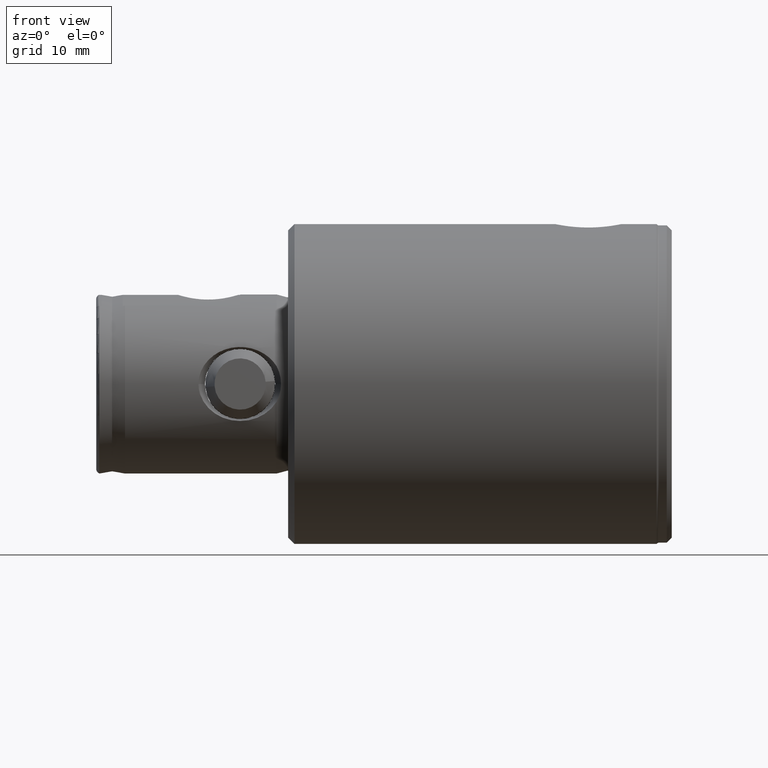
[diagram: clean part render]
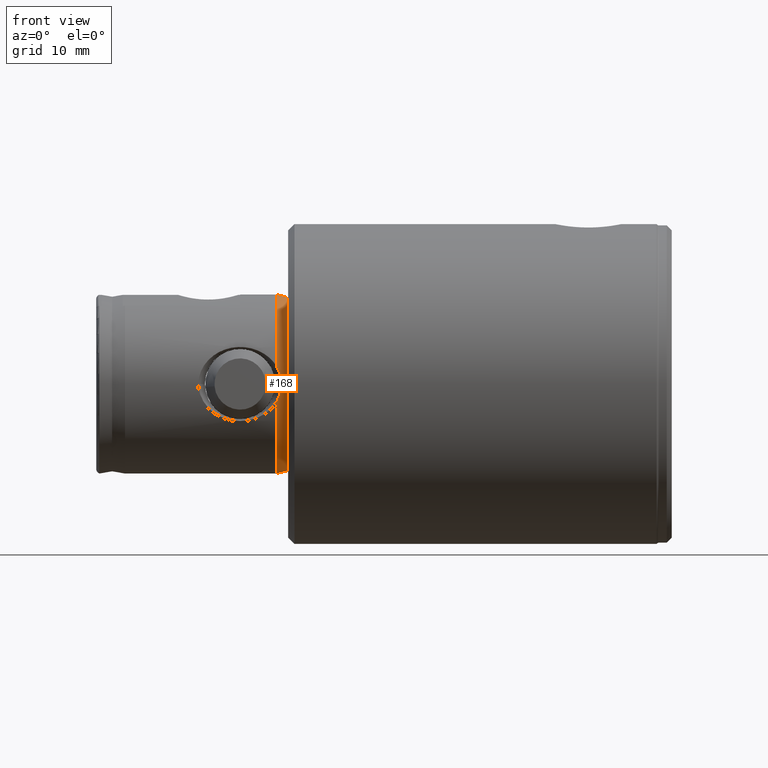
[diagram: same view with one face highlighted and labeled with its STEP entity id]
A machine part, front view. The second image highlights one B-rep face of the part: STEP entity #168.
In plain terms, the highlighted conical surface has half-angle 15 deg.
Its self-contained STEP definition (entity closure, byte-faithful):
#11 = LINE ( 'NONE', #4418, #1731 ) ;
#77 = DIRECTION ( 'NONE',  ( -1.000000000000000000, 0.0000000000000000000, 0.0000000000000000000 ) ) ;
#88 = DIRECTION ( 'NONE',  ( -0.2588190451025306200, 3.169619151431885700E-017, 0.9659258262890656500 ) ) ;
#145 = VERTEX_POINT ( 'NONE', #3553 ) ;
#147 = CARTESIAN_POINT ( 'NONE',  ( -7.840727246964199400E-016, -13.81305706548728700, 61.09756858248216800 ) ) ;
#161 = EDGE_CURVE ( 'NONE', #1756, #2107, #2412, .T. ) ;
#168 = ADVANCED_FACE ( 'NONE', ( #4075 ), #254, .T. ) ;
#179 = CARTESIAN_POINT ( 'NONE',  ( 1.905477004963748400, -13.76937602453819500, 61.39511536676124600 ) ) ;
#254 = CONICAL_SURFACE ( 'NONE', #2848, 14.20000000000000100, 0.2617993877991596200 ) ;
#344 = ORIENTED_EDGE ( 'NONE', *, *, #3162, .F. ) ;
#371 = EDGE_CURVE ( 'NONE', #145, #2923, #11, .T. ) ;
#496 = CIRCLE ( 'NONE', #987, 14.00000000000000000 ) ;
#499 = B_SPLINE_CURVE_WITH_KNOTS ( 'NONE', 3,
 ( #4470, #2349, #179, #4052, #894, #147 ),
 .UNSPECIFIED., .F., .F.,
 ( 4, 2, 4 ),
 ( 4.232321616860150200E-007, 0.001442793850183873800, 0.002885164468206061600 ),
 .UNSPECIFIED. ) ;
#529 = CARTESIAN_POINT ( 'NONE',  ( -2.355123084629318500, -13.74547602859877300, 61.56844823570346400 ) ) ;
#530 = ORIENTED_EDGE ( 'NONE', *, *, #2792, .T. ) ;
#606 = CARTESIAN_POINT ( 'NONE',  ( -14.00000000000000000, 0.0000000000000000000, 61.79524911219960600 ) ) ;
#772 = EDGE_CURVE ( 'NONE', #1222, #900, #499, .T. ) ;
#894 = CARTESIAN_POINT ( 'NONE',  ( 0.4818684627063577500, -13.81305706548728700, 61.09756858248218200 ) ) ;
#900 = VERTEX_POINT ( 'NONE', #1982 ) ;
#987 = AXIS2_PLACEMENT_3D ( 'NONE', #3155, #1360, #3480 ) ;
#1061 = CARTESIAN_POINT ( 'NONE',  ( 14.20000000000000100, 0.0000000000000000000, 62.54165927371335700 ) ) ;
#1166 = CARTESIAN_POINT ( 'NONE',  ( 0.0000000000000000000, 0.0000000000000000000, 61.79524911219960600 ) ) ;
#1222 = VERTEX_POINT ( 'NONE', #3757 ) ;
#1284 = VECTOR ( 'NONE', #2946, 1000.000000000000000 ) ;
#1360 = DIRECTION ( 'NONE',  ( 0.0000000000000000000, 0.0000000000000000000, 1.000000000000000000 ) ) ;
#1422 = DIRECTION ( 'NONE',  ( 0.0000000000000000000, 0.0000000000000000000, 1.000000000000000000 ) ) ;
#1434 = CARTESIAN_POINT ( 'NONE',  ( 0.0000000000000000000, 0.0000000000000000000, 62.54165927371335700 ) ) ;
#1514 = DIRECTION ( 'NONE',  ( 0.0000000000000000000, 0.0000000000000000000, -1.000000000000000000 ) ) ;
#1555 = DIRECTION ( 'NONE',  ( 0.0000000000000000000, 0.0000000000000000000, 1.000000000000000000 ) ) ;
#1599 = CARTESIAN_POINT ( 'NONE',  ( -2.786003228854989600, -13.71999220148501500, 61.79524911219960600 ) ) ;
#1731 = VECTOR ( 'NONE', #88, 1000.000000000000000 ) ;
#1756 = VERTEX_POINT ( 'NONE', #2812 ) ;
#1813 = ORIENTED_EDGE ( 'NONE', *, *, #371, .F. ) ;
#1982 = CARTESIAN_POINT ( 'NONE',  ( -7.840727246964199400E-016, -13.81305706548728700, 61.09756858248216800 ) ) ;
#1996 = CARTESIAN_POINT ( 'NONE',  ( -0.4801639027073368900, -13.81075038062141000, 61.11239350353491800 ) ) ;
#2107 = VERTEX_POINT ( 'NONE', #3746 ) ;
#2323 = CARTESIAN_POINT ( 'NONE',  ( -2.786003228854989600, -13.71999220148501500, 61.79524911219960600 ) ) ;
#2327 = B_SPLINE_CURVE_WITH_KNOTS ( 'NONE', 3,
 ( #3758, #4113, #1996, #4465, #2343, #3693, #529, #1599 ),
 .UNSPECIFIED., .F., .F.,
 ( 4, 2, 2, 4 ),
 ( 0.002885164468206061600, 0.003604870476972514000, 0.004324576485738966500, 0.005763988503271870600 ),
 .UNSPECIFIED. ) ;
#2343 = CARTESIAN_POINT ( 'NONE',  ( -1.197790595859879100, -13.79502311351445700, 61.21651181524254100 ) ) ;
#2349 = CARTESIAN_POINT ( 'NONE',  ( 2.354396793362280200, -13.74551898411977300, 61.56806594030609100 ) ) ;
#2412 = LINE ( 'NONE', #1061, #1284 ) ;
#2709 = EDGE_LOOP ( 'NONE', ( #1813, #3674, #4244, #344, #4257, #530, #4528 ) ) ;
#2792 = EDGE_CURVE ( 'NONE', #900, #3807, #2327, .T. ) ;
#2812 = CARTESIAN_POINT ( 'NONE',  ( 13.56703708685547100, 0.0000000000000000000, 60.17940952255126100 ) ) ;
#2848 = AXIS2_PLACEMENT_3D ( 'NONE', #1434, #1422, #3948 ) ;
#2923 = VERTEX_POINT ( 'NONE', #606 ) ;
#2937 = DIRECTION ( 'NONE',  ( 1.000000000000000000, 0.0000000000000000000, 0.0000000000000000000 ) ) ;
#2946 = DIRECTION ( 'NONE',  ( 0.2588190451025306200, 0.0000000000000000000, 0.9659258262890656500 ) ) ;
#3155 = CARTESIAN_POINT ( 'NONE',  ( 0.0000000000000000000, 0.0000000000000000000, 61.79524911219960600 ) ) ;
#3162 = EDGE_CURVE ( 'NONE', #1222, #2107, #3694, .T. ) ;
#3335 = EDGE_CURVE ( 'NONE', #2923, #3807, #496, .T. ) ;
#3452 = CIRCLE ( 'NONE', #4086, 13.56703708685547100 ) ;
#3480 = DIRECTION ( 'NONE',  ( 1.000000000000000000, 0.0000000000000000000, 0.0000000000000000000 ) ) ;
#3553 = CARTESIAN_POINT ( 'NONE',  ( -13.56703708685547100, 1.687994186519696400E-015, 60.17940952255126100 ) ) ;
#3653 = CARTESIAN_POINT ( 'NONE',  ( 0.0000000000000000000, 0.0000000000000000000, 60.17940952255126100 ) ) ;
#3674 = ORIENTED_EDGE ( 'NONE', *, *, #4482, .F. ) ;
#3693 = CARTESIAN_POINT ( 'NONE',  ( -1.904664483790296200, -13.76946242266634000, 61.39444720413402500 ) ) ;
#3694 = CIRCLE ( 'NONE', #3724, 14.00000000000000000 ) ;
#3724 = AXIS2_PLACEMENT_3D ( 'NONE', #1166, #1555, #2937 ) ;
#3746 = CARTESIAN_POINT ( 'NONE',  ( 14.00000000000000000, 1.714505518806294600E-015, 61.79524911219960600 ) ) ;
#3757 = CARTESIAN_POINT ( 'NONE',  ( 2.786003228854985200, -13.71999220148501300, 61.79524911219960600 ) ) ;
#3758 = CARTESIAN_POINT ( 'NONE',  ( -7.840727246964199400E-016, -13.81305706548728700, 61.09756858248216800 ) ) ;
#3807 = VERTEX_POINT ( 'NONE', #2323 ) ;
#3948 = DIRECTION ( 'NONE',  ( 1.000000000000000000, 0.0000000000000000000, 0.0000000000000000000 ) ) ;
#4052 = CARTESIAN_POINT ( 'NONE',  ( 0.9720748263342039500, -13.80324140347827800, 61.15923595348531400 ) ) ;
#4075 = FACE_OUTER_BOUND ( 'NONE', #2709, .T. ) ;
#4086 = AXIS2_PLACEMENT_3D ( 'NONE', #3653, #1514, #77 ) ;
#4113 = CARTESIAN_POINT ( 'NONE',  ( -0.2404400254078692100, -13.81305706548728700, 61.09756858248216800 ) ) ;
#4244 = ORIENTED_EDGE ( 'NONE', *, *, #161, .T. ) ;
#4257 = ORIENTED_EDGE ( 'NONE', *, *, #772, .T. ) ;
#4418 = CARTESIAN_POINT ( 'NONE',  ( -14.20000000000000100, 1.738998454789241500E-015, 62.54165927371335700 ) ) ;
#4465 = CARTESIAN_POINT ( 'NONE',  ( -0.9581812752519868200, -13.80175967090745800, 61.17168772862450500 ) ) ;
#4470 = CARTESIAN_POINT ( 'NONE',  ( 2.786003228854985200, -13.71999220148501300, 61.79524911219960600 ) ) ;
#4482 = EDGE_CURVE ( 'NONE', #1756, #145, #3452, .T. ) ;
#4528 = ORIENTED_EDGE ( 'NONE', *, *, #3335, .F. ) ;